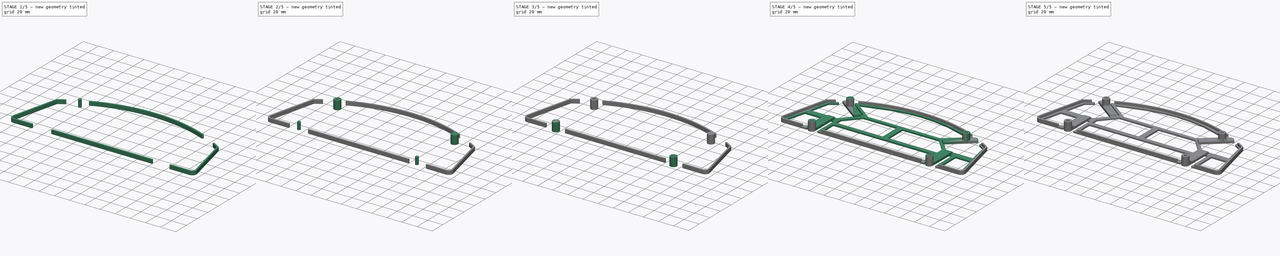
[diagram: build sequence overview — one tinted view per stage of 5, left to right]
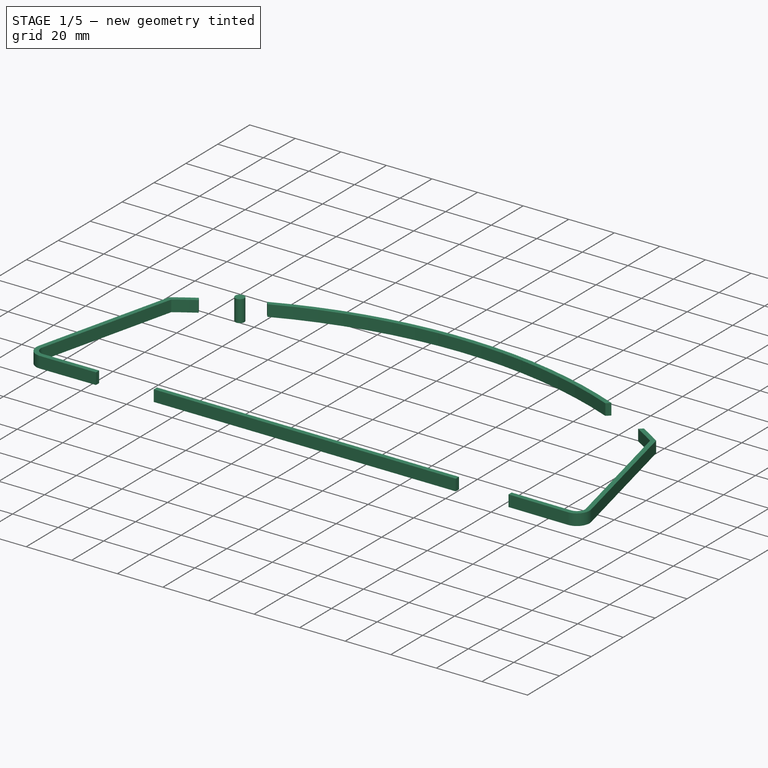
[diagram: stage 1 of 5 — iso view after this stage's code; geometry added in this stage tinted green]
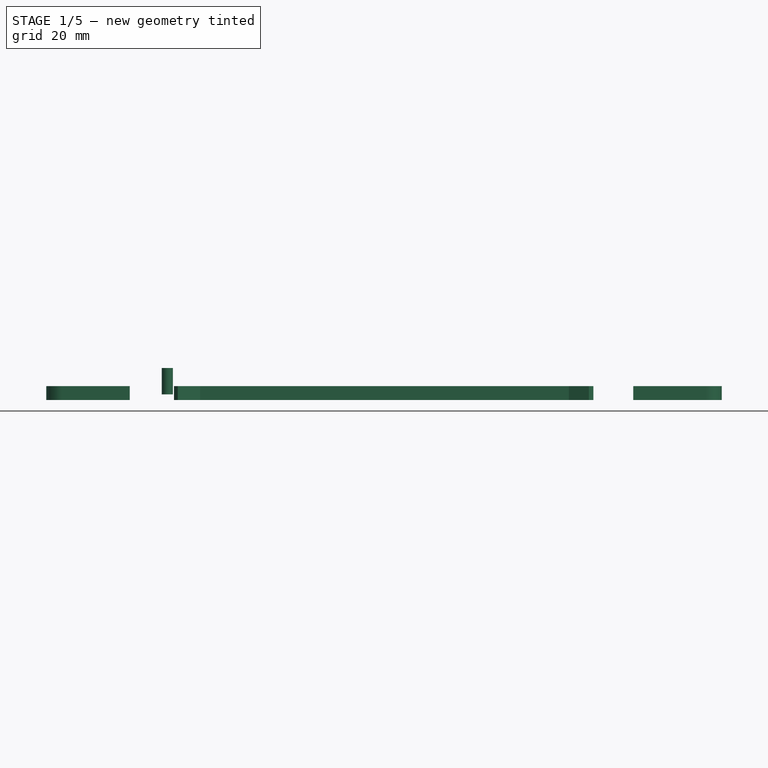
[diagram: stage 1 of 5 — front view after this stage's code; geometry added in this stage tinted green]
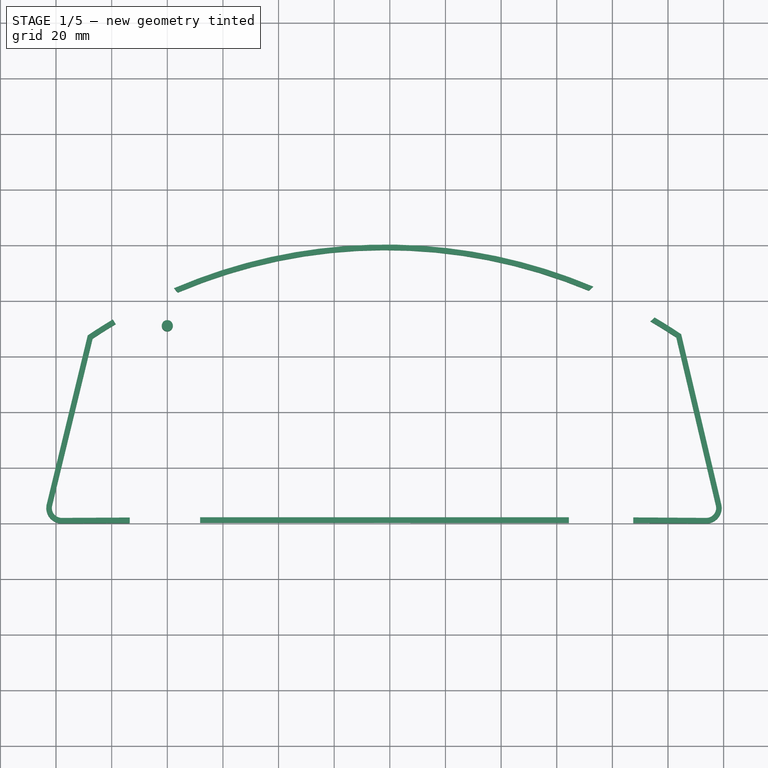
[diagram: stage 1 of 5 — top view after this stage's code; geometry added in this stage tinted green]
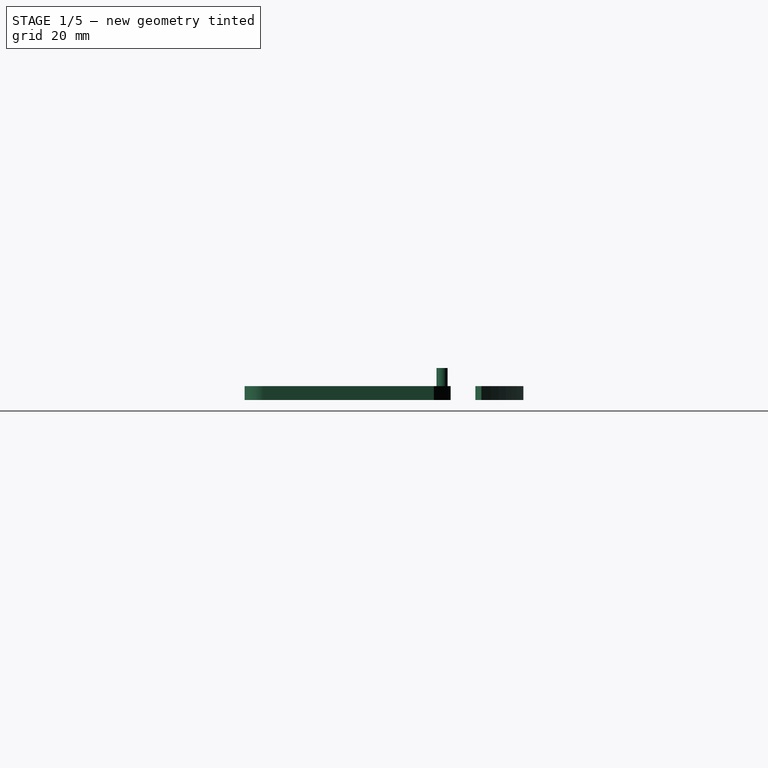
[diagram: stage 1 of 5 — right view after this stage's code; geometry added in this stage tinted green]
FCSTD DOCUMENT  (FreeCAD 0.16R6045 (Git))
Label: project_n_rev6
License: All rights reserved
LicenseURL: http://en.wikipedia.org/wiki/All_rights_reserved
objects: Part::Cylinder×8, Sketcher::SketchObject×5, Part::Cut×5, PartDesign::Fillet×4, PartDesign::Pad×2, Part::Extrusion×2, Part::MultiFuse×2, Part::Thickness×1
note: 31 computed .brp shape members not serialized (recipe doc carries the construction recipe); baked Part::Feature solids carry a one-line shape summary decoded from their .brp

FEATURE [Sketcher::SketchObject] Sketch  label="Base"
  Placement = pos=(0,0,0) rot=(1,0,0;3.14159rad)
  sketch-geometry (61):
    g0: LineSegment StartX=-43.3507 StartY=-6.8712 StartZ=0 EndX=-28.7131 EndY=-67.7959 EndZ=0
    g1: LineSegment StartX=199.163 StartY=-6.8694 StartZ=0 EndX=184.743 EndY=-68.0557 EndZ=0
    g2: ArcOfCircle CenterX=-37.936 CenterY=-5.56776 CenterZ=0 NormalX=0 NormalY=0 NormalZ=1 Radius=5.56941 StartAngle=1.57075 EndAngle=3.37782
    g3: ArcOfCircle CenterX=193.736 CenterY=-5.5753 CenterZ=0 NormalX=0 NormalY=0 NormalZ=1 Radius=5.57903 StartAngle=6.0491 EndAngle=7.85398
    g4: ArcOfCircle CenterX=78.2135 CenterY=90.7587 CenterZ=0 NormalX=0 NormalY=0 NormalZ=1 Radius=191.24 StartAngle=4.11906 EndAngle=4.18254
    g5: LineSegment StartX=-6.93925 StartY=-32 StartZ=0 EndX=-6.93925 EndY=0.000261594 EndZ=0
    g6: LineSegment StartX=7 StartY=-32 StartZ=0 EndX=7 EndY=0.000143702 EndZ=0
    g7: LineSegment StartX=-6.93925 StartY=0.000261594 StartZ=0 EndX=-37.9357 EndY=0.00165396 EndZ=0
    g8: LineSegment StartX=149.061 StartY=-32.3968 StartZ=0 EndX=149.061 EndY=0.00359255 EndZ=0
    g9: LineSegment StartX=163.386 StartY=-32.3968 StartZ=0 EndX=163.268 EndY=0.00373137 EndZ=0
    g10: LineSegment StartX=149.061 StartY=0.00359255 StartZ=0 EndX=7 EndY=0.000143702 EndZ=0
    g11: LineSegment StartX=163.268 StartY=0.00373137 StartZ=0 EndX=193.736 EndY=0.00373137 EndZ=0
    g12: LineSegment StartX=25.2575 StartY=-61.8332 StartZ=0 EndX=-0.158145 EndY=-81.3435 EndZ=0
    g13: ArcOfCircle CenterX=78.2139 CenterY=90.914 CenterZ=0 NormalX=0 NormalY=0 NormalZ=1 Radius=191.176 StartAngle=4.28771 EndAngle=5.13451
    g14: LineSegment StartX=131.274 StartY=-60.4558 StartZ=0 EndX=155.814 EndY=-81.0775 EndZ=0
    g15: ArcOfCircle CenterX=78.2607 CenterY=90.6757 CenterZ=0 NormalX=0 NormalY=0 NormalZ=1 Radius=191.139 StartAngle=5.23447 EndAngle=5.30327
    g16: LineSegment StartX=5 StartY=-81.3932 StartZ=0 EndX=40.6717 EndY=-92 EndZ=0
    g17: LineSegment StartX=40.6717 StartY=-92 StartZ=0 EndX=62.6408 EndY=-95.7307 EndZ=0
    g18: LineSegment StartX=115.422 StartY=-92.1981 StartZ=0 EndX=150.549 EndY=-81.3932 EndZ=0
    g19: LineSegment StartX=150.549 StartY=-81.3932 StartZ=0 EndX=126.643 EndY=-62 EndZ=0
    g20: LineSegment StartX=126.643 StartY=-62 StartZ=0 EndX=31 EndY=-62 EndZ=0
    g21: LineSegment StartX=31 StartY=-62 StartZ=0 EndX=5 EndY=-81.3932 EndZ=0
    g22: LineSegment StartX=-10.4578 StartY=-5 StartZ=0 EndX=-10.4578 EndY=-32.2508 EndZ=0
    g23: LineSegment StartX=-10.4578 StartY=-32.2508 StartZ=0 EndX=-31.6913 EndY=-32.2508 EndZ=0
    g24: LineSegment StartX=-31.6913 StartY=-32.2508 StartZ=0 EndX=-39.0271 EndY=-5 EndZ=0
    g25: LineSegment StartX=-39.0271 StartY=-5 StartZ=0 EndX=-10.4578 EndY=-5 EndZ=0
    g26: LineSegment StartX=11.261 StartY=-6.50449 StartZ=0 EndX=11.261 EndY=-24.5558 EndZ=0
    g27: LineSegment StartX=11.261 StartY=-24.5558 StartZ=0 EndX=144.695 EndY=-24.5558 EndZ=0
    g28: LineSegment StartX=144.695 StartY=-24.5558 StartZ=0 EndX=144.695 EndY=-6.50449 EndZ=0
    g29: LineSegment StartX=144.695 StartY=-6.50449 StartZ=0 EndX=11.261 EndY=-6.50449 EndZ=0
    g30: LineSegment StartX=167.644 StartY=-32.3805 StartZ=0 EndX=187.787 EndY=-32.3805 EndZ=0
    g31: LineSegment StartX=187.787 StartY=-32.3805 StartZ=0 EndX=193.482 EndY=-6.26056 EndZ=0
    g32: LineSegment StartX=193.482 StartY=-6.26056 StartZ=0 EndX=167.644 EndY=-6.26056 EndZ=0
    g33: LineSegment StartX=167.644 StartY=-6.26056 StartZ=0 EndX=167.644 EndY=-32.3805 EndZ=0
    g34: LineSegment StartX=-30.3573 StartY=-40 StartZ=0 EndX=-23.9998 EndY=-65.8043 EndZ=0
    g35: LineSegment StartX=-23.9998 StartY=-65.8043 StartZ=0 EndX=-16.0016 EndY=-71.0891 EndZ=0
    g36: LineSegment StartX=5.55797 StartY=-40 StartZ=0 EndX=-30.3573 EndY=-40 EndZ=0
    g37: LineSegment StartX=185.342 StartY=-39.9597 StartZ=0 EndX=150 EndY=-39.9597 EndZ=0
    g38: LineSegment StartX=171.374 StartY=-72.2033 StartZ=0 EndX=180.008 EndY=-66.783 EndZ=0
    g39: LineSegment StartX=180.008 StartY=-66.783 StartZ=0 EndX=185.342 EndY=-39.9597 EndZ=0
    g40: LineSegment StartX=73 StartY=-29.4733 StartZ=0 EndX=73 EndY=-57.6014 EndZ=0
    g41: LineSegment StartX=73 StartY=-57.6014 StartZ=0 EndX=28 EndY=-57.6014 EndZ=0
    g42: LineSegment StartX=28 StartY=-57.6014 StartZ=0 EndX=11.2859 EndY=-39 EndZ=0
    g43: LineSegment StartX=11.2859 StartY=-39 StartZ=0 EndX=11.2859 EndY=-29.4733 EndZ=0
    g44: LineSegment StartX=11.2859 StartY=-29.4733 StartZ=0 EndX=73 EndY=-29.4733 EndZ=0
    g45: LineSegment StartX=80.0378 StartY=-29.4766 StartZ=0 EndX=80.0378 EndY=-57.4378 EndZ=0
    g46: LineSegment StartX=80.0378 StartY=-57.4378 StartZ=0 EndX=128.477 EndY=-57.4378 EndZ=0
    g47: LineSegment StartX=128.477 StartY=-57.4378 StartZ=0 EndX=145 EndY=-39.2911 EndZ=0
    g48: LineSegment StartX=145 StartY=-39.2911 StartZ=0 EndX=145 EndY=-29.4766 EndZ=0
    g49: LineSegment StartX=145 StartY=-29.4766 StartZ=0 EndX=80.0378 EndY=-29.4766 EndZ=0
    g50: LineSegment StartX=62.6408 StartY=-95.7307 StartZ=0 EndX=78 EndY=-96.5296 EndZ=0
    g51: LineSegment StartX=78 StartY=-96.5296 StartZ=0 EndX=97 EndY=-95.3313 EndZ=0
    g52: LineSegment StartX=97 StartY=-95.3313 StartZ=0 EndX=115.422 EndY=-92.1981 EndZ=0
    g53: LineSegment StartX=-6.93925 StartY=-32 StartZ=0 EndX=7 EndY=-32 EndZ=0
    g54: LineSegment StartX=149.061 StartY=-32.3968 StartZ=0 EndX=163.386 EndY=-32.3968 EndZ=0
    g55: LineSegment StartX=5.55797 StartY=-40 StartZ=0 EndX=25.2575 EndY=-61.8332 EndZ=0
    g56: LineSegment StartX=131.274 StartY=-60.4558 StartZ=0 EndX=150 EndY=-39.9597 EndZ=0
    g57: ArcOfCircle CenterX=0.789964 CenterY=-82.5476 CenterZ=0 NormalX=0 NormalY=0 NormalZ=1 Radius=1.53254 StartAngle=2.23782 EndAngle=3.63952
    g58: ArcOfCircle CenterX=-17.3651 CenterY=-72.5633 CenterZ=0 NormalX=0 NormalY=0 NormalZ=1 Radius=2.00806 StartAngle=4.14718 EndAngle=7.10756
    g59: ArcOfCircle CenterX=154.996 CenterY=-82.6346 CenterZ=0 NormalX=0 NormalY=0 NormalZ=1 Radius=1.75917 StartAngle=5.78144 EndAngle=7.36998
    g60: ArcOfCircle CenterX=172.566 CenterY=-73.5312 CenterZ=0 NormalX=0 NormalY=0 NormalZ=1 Radius=1.78446 StartAngle=2.30229 EndAngle=5.31637
  constraints (84):
    c: Coincident(g4,g0)
    c: Coincident(g15,g1)
    c: Coincident(g6,g10)
    c: Coincident(g9,g11)
    c: Coincident(g5,g7)
    c: Coincident(g10,g8)
    c: Coincident(g0,g2)
    c: Coincident(g3,g1)
    c: Coincident(g2,g7)
    c: Coincident(g3,g11)
    c: Coincident(g16,g17)
    c: Coincident(g52,g18)
    c: Coincident(g18,g19)
    c: Coincident(g19,g20)
    c: Horizontal(g20)
    c: Coincident(g20,g21)
    c: Coincident(g21,g16)
    c: Vertical(g22)
    c: Coincident(g22,g23)
    c: Horizontal(g23)
    c: Coincident(g23,g24)
    c: Coincident(g25,g24)
    c: Coincident(g25,g22)
    c: Horizontal(g25)
    c: Vertical(g26)
    c: Coincident(g26,g27)
    c: Horizontal(g27)
    c: Coincident(g27,g28)
    c: Vertical(g28)
    c: Coincident(g28,g29)
    c: Coincident(g29,g26)
    c: Horizontal(g29)
    c: Horizontal(g30)
    c: Coincident(g30,g31)
    c: Coincident(g31,g32)
    c: Horizontal(g32)
    c: Coincident(g32,g33)
    c: Coincident(g33,g30)
    c: Vertical(g33)
    c: Coincident(g34,g35)
    c: Coincident(g36,g34)
    c: Horizontal(g36)
    c: Horizontal(g37)
    c: Coincident(g38,g39)
    c: Coincident(g39,g37)
    c: Vertical(g40)
    c: Coincident(g40,g41)
    c: Horizontal(g41)
    c: Coincident(g41,g42)
    c: Coincident(g42,g43)
    c: Vertical(g43)
    c: Coincident(g43,g44)
    c: Coincident(g44,g40)
    c: Horizontal(g44)
    c: Vertical(g45)
    c: Coincident(g45,g46)
    c: Horizontal(g46)
    c: Coincident(g46,g47)
    c: Coincident(g47,g48)
    c: Vertical(g48)
    c: Coincident(g48,g49)
    c: Coincident(g49,g45)
    c: Horizontal(g49)
    c: Coincident(g50,g51)
    c: Coincident(g17,g50)
    c: Coincident(g52,g51)
    c: Coincident(g53,g5)
    c: Coincident(g53,g6)
    c: Horizontal(g53)
    c: Coincident(g54,g8)
    c: Coincident(g54,g9)
    c: Horizontal(g54)
    c: Coincident(g55,g36)
    c: Coincident(g55,g12)
    c: Coincident(g56,g14)
    c: Coincident(g56,g37)
    c: Coincident(g12,g57)
    c: Coincident(g13,g57)
    c: Coincident(g35,g58)
    c: Coincident(g4,g58)
    c: Coincident(g14,g59)
    c: Coincident(g13,g59)
    c: Coincident(g38,g60)
    c: Coincident(g15,g60)
FEATURE [Sketcher::SketchObject] Sketch004  label="Wall"
  sketch-geometry (29):
    g0: ArcOfCircle CenterX=78.2135 CenterY=90.7587 CenterZ=0 NormalX=0 NormalY=0 NormalZ=1 Radius=191.194 StartAngle=4.13378 EndAngle=4.19443
    g1: LineSegment StartX=-6 StartY=0 StartZ=0 EndX=-38 EndY=0 EndZ=0
    g2: LineSegment StartX=150 StartY=0 StartZ=0 EndX=5.75606 EndY=0 EndZ=0
    g3: LineSegment StartX=162 StartY=0 StartZ=0 EndX=193.736 EndY=0 EndZ=0
    g4: ArcOfCircle CenterX=78.3526 CenterY=90.8251 CenterZ=0 NormalX=0 NormalY=0 NormalZ=1 Radius=191.182 StartAngle=4.31861 EndAngle=5.10486
    g5: ArcOfCircle CenterX=78.2135 CenterY=90.7587 CenterZ=0 NormalX=0 NormalY=0 NormalZ=1 Radius=190.959 StartAngle=5.22699 EndAngle=5.28539
    g6: LineSegment StartX=5 StartY=-83 StartZ=0 EndX=39.505 EndY=-94 EndZ=0
    g7: LineSegment StartX=39.505 StartY=-94 StartZ=0 EndX=62.585 EndY=-98 EndZ=0
    g8: LineSegment StartX=115.781 StartY=-94.1981 StartZ=0 EndX=151.474 EndY=-83.5973 EndZ=0
    g9: LineSegment StartX=-38 StartY=-3.39482 StartZ=0 EndX=-6 EndY=-3.39482 EndZ=0
    g10: LineSegment StartX=149.756 StartY=-3.59354 StartZ=0 EndX=5.75606 EndY=-3.59354 EndZ=0
    g11: LineSegment StartX=193.736 StartY=-4.18044 StartZ=0 EndX=162 EndY=-4.18044 EndZ=0
    g12: LineSegment StartX=-24.7851 StartY=-67 StartZ=0 EndX=-14.3428 EndY=-73.6141 EndZ=0
    g13: LineSegment StartX=171 StartY=-74 StartZ=0 EndX=181 EndY=-67.7707 EndZ=0
    g14: LineSegment StartX=62.585 StartY=-98 StartZ=0 EndX=78 EndY=-98.5838 EndZ=0
    g15: LineSegment StartX=78 StartY=-98.5838 StartZ=0 EndX=97.359 EndY=-97.3313 EndZ=0
    g16: LineSegment StartX=97.359 StartY=-97.3313 StartZ=0 EndX=115.781 EndY=-94.1981 EndZ=0
    g17: LineSegment StartX=-6 StartY=0 StartZ=0 EndX=-6 EndY=-3.39482 EndZ=0
    g18: LineSegment StartX=5.75606 StartY=-3.59354 StartZ=0 EndX=5.75606 EndY=0 EndZ=0
    g19: LineSegment StartX=-38 StartY=0 StartZ=0 EndX=-38 EndY=-3.39482 EndZ=0
    g20: LineSegment StartX=150 StartY=0 StartZ=0 EndX=149.756 EndY=-3.59354 EndZ=0
    g21: LineSegment StartX=162 StartY=0 StartZ=0 EndX=162 EndY=-4.18044 EndZ=0
    g22: LineSegment StartX=193.736 StartY=0 StartZ=0 EndX=193.736 EndY=-4.18044 EndZ=0
    g23: LineSegment StartX=5 StartY=-83 StartZ=0 EndX=5 EndY=-85.7248 EndZ=0
    g24: LineSegment StartX=151.474 StartY=-83.5973 StartZ=0 EndX=151.474 EndY=-85.8208 EndZ=0
    g25: LineSegment StartX=171 StartY=-74 StartZ=0 EndX=172.201 EndY=-75.469 EndZ=0
    g26: LineSegment StartX=181 StartY=-67.7707 StartZ=0 EndX=181.744 EndY=-69.6997 EndZ=0
    g27: LineSegment StartX=-14.3428 StartY=-73.6141 StartZ=0 EndX=-16.4482 EndY=-75.3566 EndZ=0
    g28: LineSegment StartX=-24.7851 StartY=-67 StartZ=0 EndX=-26.3433 EndY=-69.3132 EndZ=0
  constraints (39):
    c: Coincident(g6,g7)
    c: Coincident(g16,g8)
    c: Horizontal(g9)
    c: Horizontal(g10)
    c: Horizontal(g11)
    c: Coincident(g14,g15)
    c: Coincident(g7,g14)
    c: Coincident(g16,g15)
    c: Coincident(g17,g1)
    c: Coincident(g17,g9)
    c: Vertical(g17)
    c: Coincident(g18,g10)
    c: Coincident(g18,g2)
    c: Vertical(g18)
    c: Coincident(g19,g1)
    c: Coincident(g19,g9)
    c: Vertical(g19)
    c: Coincident(g20,g2)
    c: Coincident(g20,g10)
    c: Coincident(g21,g3)
    c: Coincident(g21,g11)
    c: Vertical(g21)
    c: Coincident(g22,g3)
    c: Coincident(g22,g11)
    c: Vertical(g22)
    c: Coincident(g23,g6)
    c: Coincident(g23,g4)
    c: Vertical(g23)
    c: Coincident(g24,g8)
    c: Coincident(g24,g4)
    c: Vertical(g24)
    c: Coincident(g25,g13)
    c: Coincident(g25,g5)
    c: Coincident(g26,g13)
    c: Coincident(g26,g5)
    c: Coincident(g27,g12)
    c: Coincident(g27,g0)
    c: Coincident(g28,g12)
    c: Coincident(g28,g0)
FEATURE [Sketcher::SketchObject] Sketch006
  Placement = pos=(0,0,0) rot=(1,0,0;3.14159rad)
  sketch-geometry (10):
    g0: LineSegment StartX=-43.3507 StartY=-6.8712 StartZ=0 EndX=-28.6056 EndY=-67.6363 EndZ=0
    g1: LineSegment StartX=199.163 StartY=-6.8694 StartZ=0 EndX=184.746 EndY=-68.0609 EndZ=0
    g2: ArcOfCircle CenterX=-37.936 CenterY=-5.56776 CenterZ=0 NormalX=0 NormalY=0 NormalZ=1 Radius=5.56941 StartAngle=1.57075 EndAngle=3.37782
    g3: ArcOfCircle CenterX=193.736 CenterY=-5.5753 CenterZ=0 NormalX=0 NormalY=0 NormalZ=1 Radius=5.57903 StartAngle=6.0491 EndAngle=7.85398
    g4: ArcOfCircle CenterX=78.6813 CenterY=91.7773 CenterZ=0 NormalX=0 NormalY=0 NormalZ=1 Radius=192.154 StartAngle=4.12001 EndAngle=4.26651
    g5: LineSegment StartX=6 StartY=-0.234337 StartZ=0 EndX=-37.9357 EndY=0.00165396 EndZ=0
    g6: LineSegment StartX=161.599 StartY=-0.204933 StartZ=0 EndX=6 EndY=-0.234337 EndZ=0
    g7: LineSegment StartX=161.599 StartY=-0.204933 StartZ=0 EndX=193.736 EndY=0.00373137 EndZ=0
    g8: ArcOfCircle CenterX=78.463 CenterY=91.7918 CenterZ=0 NormalX=0 NormalY=0 NormalZ=1 Radius=192.073 StartAngle=4.26756 EndAngle=5.14419
    g9: ArcOfCircle CenterX=78.2123 CenterY=90.7613 CenterZ=0 NormalX=0 NormalY=0 NormalZ=1 Radius=191.243 StartAngle=5.14763 EndAngle=5.30323
  constraints (10):
    c: Coincident(g4,g0)
    c: Coincident(g9,g1)
    c: Coincident(g0,g2)
    c: Coincident(g3,g1)
    c: Coincident(g2,g5)
    c: Coincident(g3,g7)
    c: Coincident(g5,g6)
    c: Coincident(g6,g7)
    c: Coincident(g8,g9)
    c: Coincident(g4,g8)
FEATURE [PartDesign::Pad] Pad
  Length = 5
  Length2 = 100
  Placement = pos=(0,0,0) rot=(1,0,0;3.14159rad)
  Reversed = true
  Sketch = -> Sketch006
  Type = 0
FEATURE [Part::Thickness] Thickness
  Faces = -> Pad [Face11,Face12]
  Intersection = false
  Join = 0
  Mode = 1
  SelfIntersection = false
  Value = -2
FEATURE [Sketcher::SketchObject] Sketch011
  Placement = pos=(0,0,0) rot=(1,0,0;3.14159rad)
  sketch-geometry (17):
    g0: LineSegment StartX=-11.2675 StartY=-79.1084 StartZ=0 EndX=-20 EndY=-74 EndZ=0
    g1: LineSegment StartX=-20 StartY=-74 StartZ=0 EndX=-17 EndY=-69.248 EndZ=0
    g2: LineSegment StartX=-17 StartY=-69.248 StartZ=0 EndX=4.79166 EndY=-81.7529 EndZ=0
    g3: LineSegment StartX=4.79166 StartY=-81.7529 StartZ=0 EndX=1.36237 EndY=-85.8123 EndZ=0
    g4: LineSegment StartX=1.36237 StartY=-85.8123 StartZ=0 EndX=-11.2675 EndY=-79.1084 EndZ=0
    g5: LineSegment StartX=175.433 StartY=-74.2412 StartZ=0 EndX=173.179 EndY=-72.2412 EndZ=0
    g6: LineSegment StartX=173.179 StartY=-72.2412 StartZ=0 EndX=150.562 EndY=-82.789 EndZ=0
    g7: LineSegment StartX=150.562 StartY=-82.789 StartZ=0 EndX=154.562 EndY=-86.3764 EndZ=0
    g8: LineSegment StartX=154.562 StartY=-86.3764 StartZ=0 EndX=175.433 EndY=-74.2412 EndZ=0
    g9: LineSegment StartX=144.347 StartY=0.629851 StartZ=0 EndX=144.347 EndY=-3.28855 EndZ=0
    g10: LineSegment StartX=144.347 StartY=-3.28855 StartZ=0 EndX=167.502 EndY=-3.28855 EndZ=0
    g11: LineSegment StartX=167.502 StartY=-3.28855 StartZ=0 EndX=167.502 EndY=2.53606 EndZ=0
    g12: LineSegment StartX=167.502 StartY=2.53606 StartZ=0 EndX=144.347 EndY=0.629851 EndZ=0
    g13: LineSegment StartX=-13.5101 StartY=1.22898 StartZ=0 EndX=-13.5101 EndY=-5 EndZ=0
    g14: LineSegment StartX=-13.5101 StartY=-5 StartZ=0 EndX=11.7831 EndY=-5 EndZ=0
    g15: LineSegment StartX=11.7831 StartY=-5 StartZ=0 EndX=11.7831 EndY=2.63585 EndZ=0
    g16: LineSegment StartX=11.7831 StartY=2.63585 StartZ=0 EndX=-13.5101 EndY=1.22898 EndZ=0
  constraints (23):
    c: Coincident(g0,g1)
    c: Coincident(g1,g2)
    c: Coincident(g2,g3)
    c: Coincident(g3,g4)
    c: Coincident(g4,g0)
    c: Coincident(g5,g6)
    c: Coincident(g6,g7)
    c: Coincident(g7,g8)
    c: Coincident(g8,g5)
    c: Vertical(g9)
    c: Coincident(g9,g10)
    c: Horizontal(g10)
    c: Coincident(g10,g11)
    c: Vertical(g11)
    c: Coincident(g11,g12)
    c: Coincident(g12,g9)
    c: Vertical(g13)
    c: Coincident(g13,g14)
    c: Horizontal(g14)
    c: Coincident(g14,g15)
    c: Vertical(g15)
    c: Coincident(g15,g16)
    c: Coincident(g16,g13)
FEATURE [PartDesign::Pad] Pad001
  Length = 10
  Length2 = 100
  Placement = pos=(0,0,0) rot=(1,0,0;3.14159rad)
  Reversed = true
  Sketch = -> Sketch011
  Type = 0
FEATURE [Part::Cylinder] Cylinder007
  Angle = 360
  Height = 9.5
  Placement = pos=(0,71,2) rot=(0,0,1;0rad)
  Radius = 2
FEATURE [Part::Cut] Cut
  Base = -> Thickness
  Tool = -> Pad001
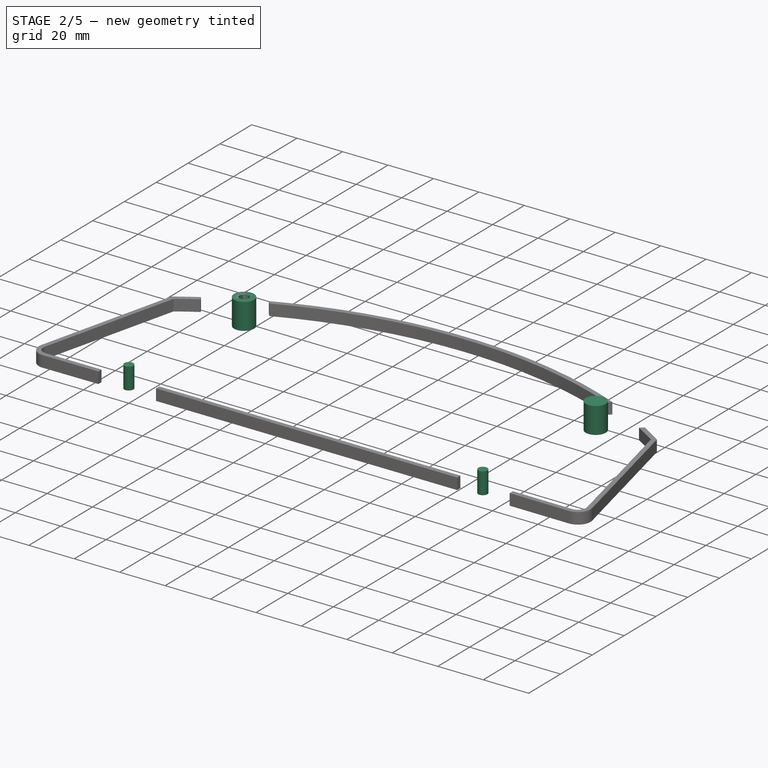
[diagram: stage 2 of 5 — iso view after this stage's code; geometry added in this stage tinted green]
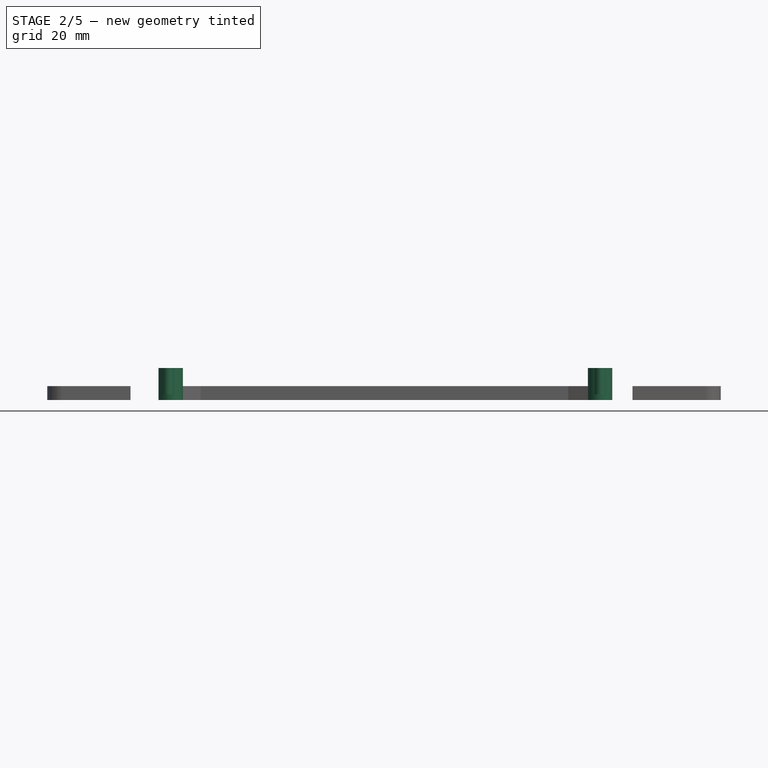
[diagram: stage 2 of 5 — front view after this stage's code; geometry added in this stage tinted green]
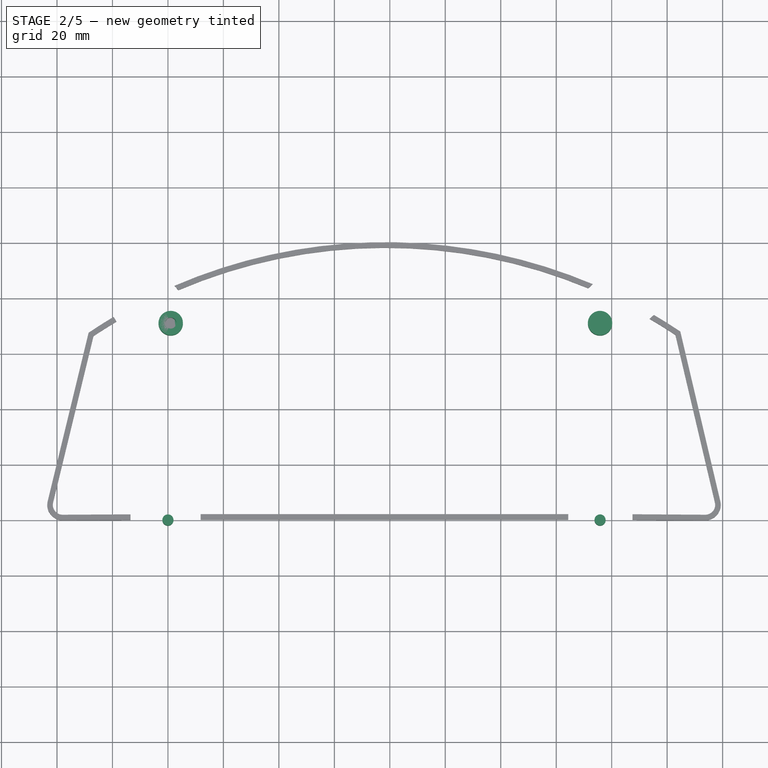
[diagram: stage 2 of 5 — top view after this stage's code; geometry added in this stage tinted green]
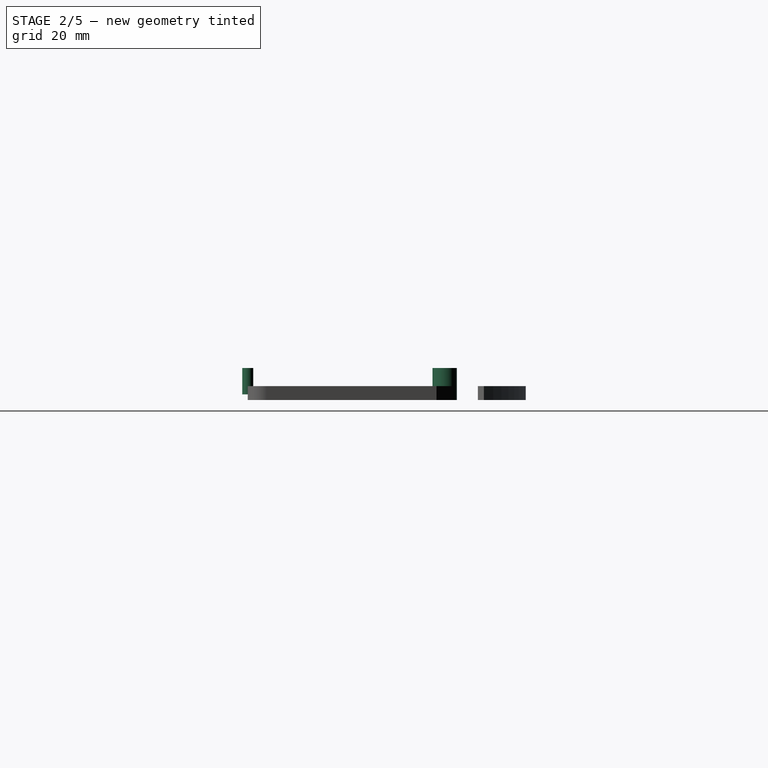
[diagram: stage 2 of 5 — right view after this stage's code; geometry added in this stage tinted green]
FEATURE [Part::Cylinder] Cylinder002
  Angle = 360
  Height = 11.5
  Placement = pos=(155.8,71,0) rot=(0,0,1;0rad)
  Radius = 4.4
FEATURE [Part::Cylinder] Cylinder003
  Angle = 360
  Height = 11.5
  Placement = pos=(0,71,0) rot=(0,0,1;0rad)
  Radius = 4.4
FEATURE [Part::Cylinder] Cylinder004
  Angle = 360
  Height = 9.5
  Placement = pos=(0,0,2) rot=(0,0,1;0rad)
  Radius = 2
FEATURE [Part::Cylinder] Cylinder005
  Angle = 360
  Height = 9.5
  Placement = pos=(155.8,0,2) rot=(0,0,1;0rad)
  Radius = 2
FEATURE [Part::Cut] Cut004
  Base = -> Cylinder003
  Placement = pos=(1,0,0) rot=(0,0,1;0rad)
  Tool = -> Cylinder007
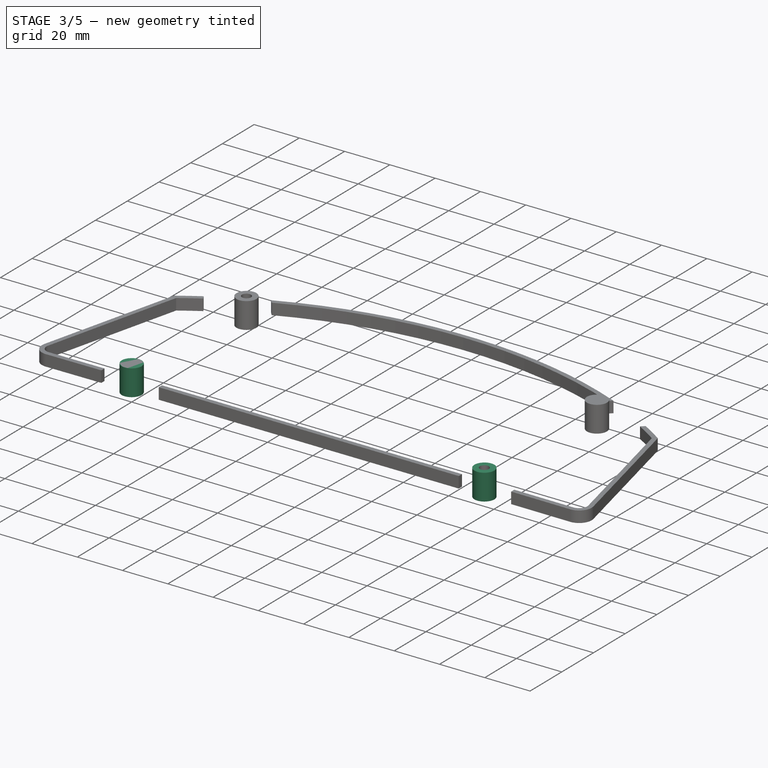
[diagram: stage 3 of 5 — iso view after this stage's code; geometry added in this stage tinted green]
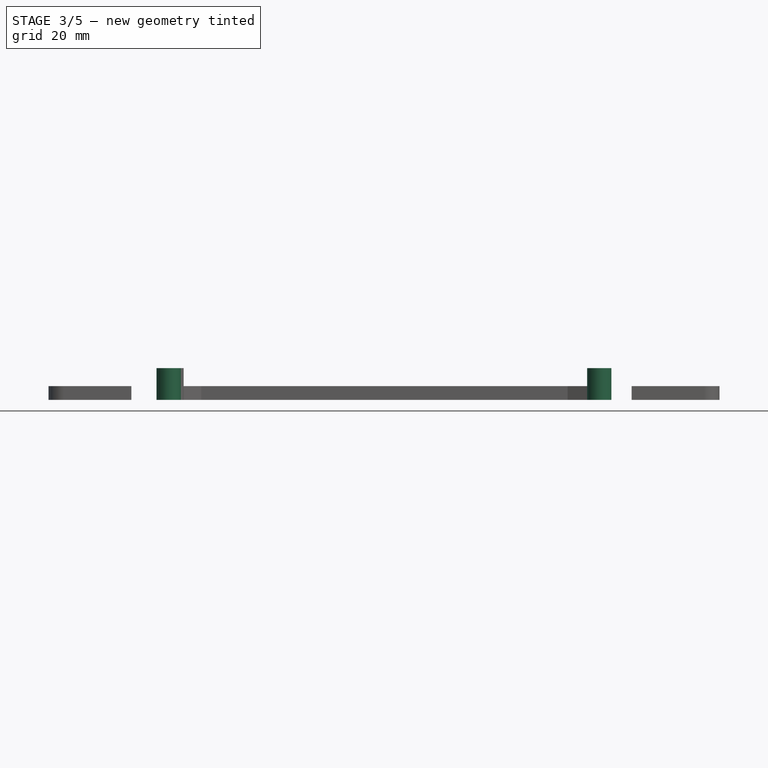
[diagram: stage 3 of 5 — front view after this stage's code; geometry added in this stage tinted green]
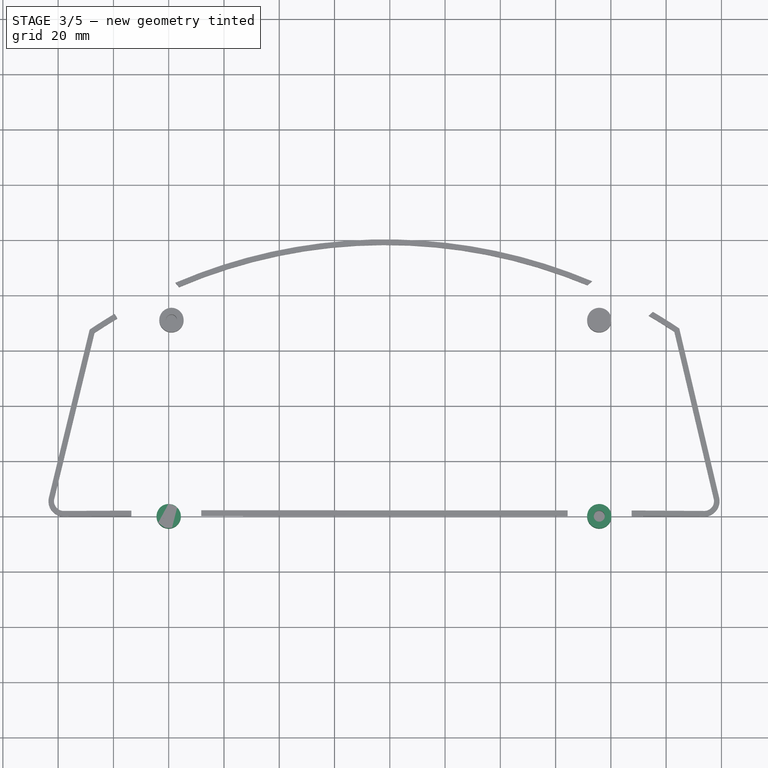
[diagram: stage 3 of 5 — top view after this stage's code; geometry added in this stage tinted green]
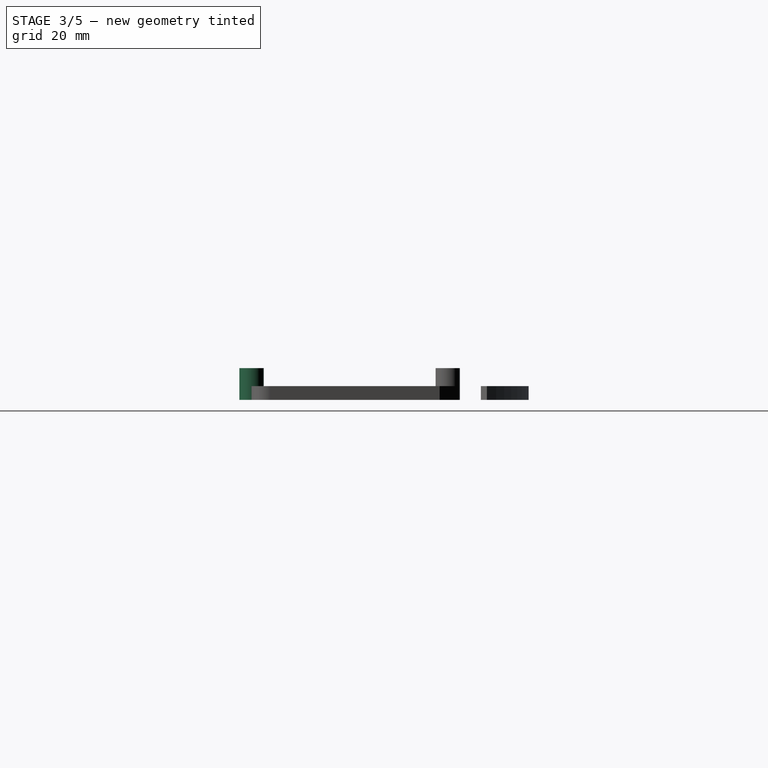
[diagram: stage 3 of 5 — right view after this stage's code; geometry added in this stage tinted green]
FEATURE [Part::Cylinder] Cylinder006
  Angle = 360
  Height = 9.5
  Placement = pos=(155.8,71,2) rot=(0,0,1;0rad)
  Radius = 2
FEATURE [Part::Cylinder] Cylinder
  Angle = 360
  Height = 11.5
  Radius = 4.4
FEATURE [Part::Cylinder] Cylinder001
  Angle = 360
  Height = 11.5
  Placement = pos=(155.8,0,0) rot=(0,0,1;0rad)
  Radius = 4.4
FEATURE [Part::Cut] Cut003
  Base = -> Cylinder001
  Tool = -> Cylinder005
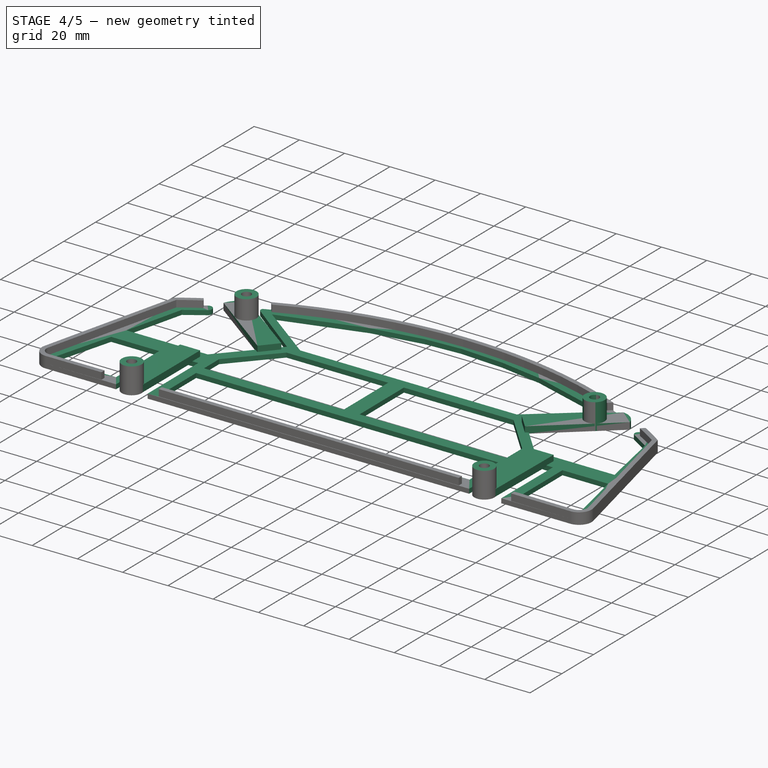
[diagram: stage 4 of 5 — iso view after this stage's code; geometry added in this stage tinted green]
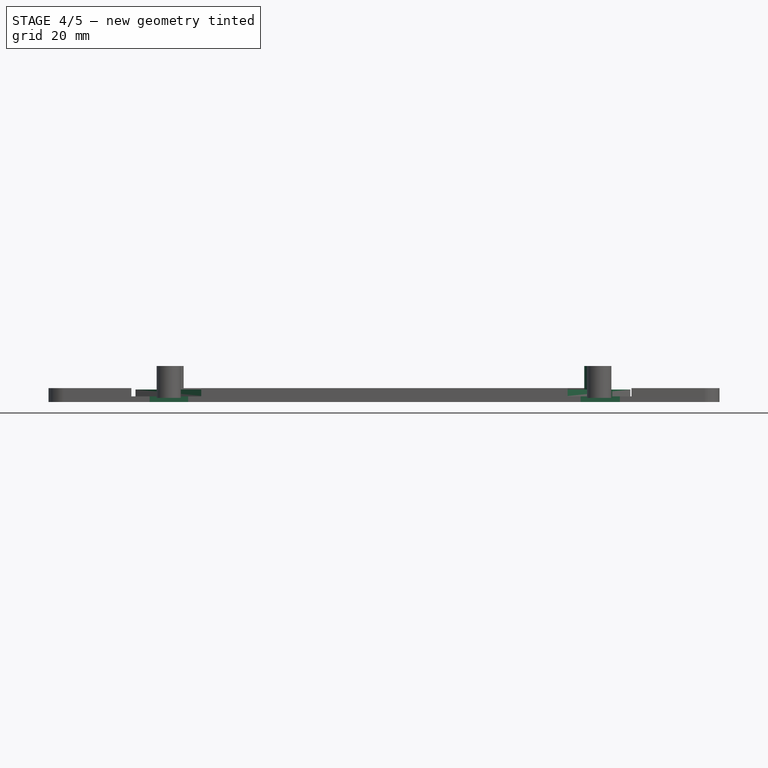
[diagram: stage 4 of 5 — front view after this stage's code; geometry added in this stage tinted green]
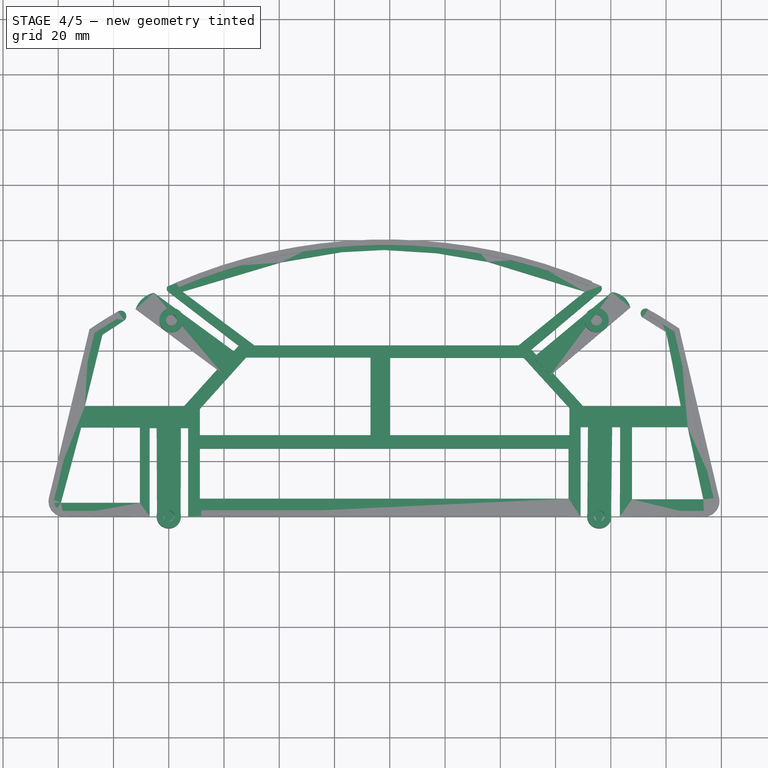
[diagram: stage 4 of 5 — top view after this stage's code; geometry added in this stage tinted green]
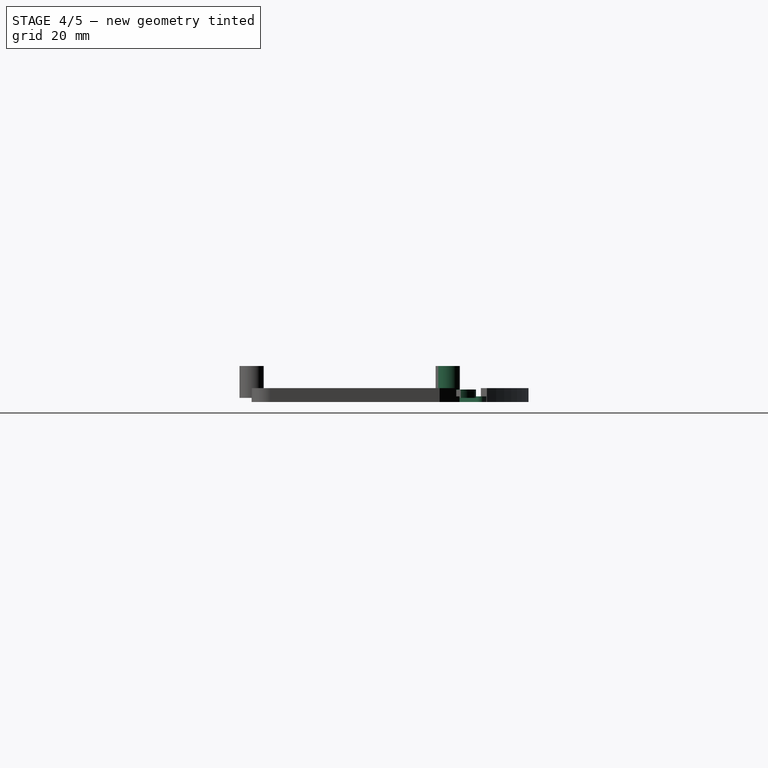
[diagram: stage 4 of 5 — right view after this stage's code; geometry added in this stage tinted green]
FEATURE [Part::Extrusion] Extrude
  Base = -> Sketch
  Dir = (0,0,2)
  Solid = true
FEATURE [Sketcher::SketchObject] Sketch007  label="Springy thing"
  Placement = pos=(0,0,1.5) rot=(1,0,0;3.14159rad)
  sketch-geometry (16):
    g0: LineSegment StartX=-4.25209 StartY=0 StartZ=0 EndX=-4.40208 EndY=-36.8708 EndZ=0
    g1: LineSegment StartX=4.28661 StartY=0 StartZ=0 EndX=4.40547 EndY=-36.8708 EndZ=0
    g2: LineSegment StartX=151.485 StartY=0 StartZ=0 EndX=151.761 EndY=-36.9528 EndZ=0
    g3: LineSegment StartX=160.108 StartY=0.006984 StartZ=0 EndX=160.535 EndY=-36.9528 EndZ=0
    g4: LineSegment StartX=-12.0203 StartY=-75.1003 StartZ=0 EndX=19.1304 EndY=-52.0043 EndZ=0
    g5: LineSegment StartX=-5.37674 StartY=-81 StartZ=0 EndX=24.952 EndY=-58.8018 EndZ=0
    g6: LineSegment StartX=167.088 StartY=-75.6817 StartZ=0 EndX=137.998 EndY=-51.0027 EndZ=0
    g7: LineSegment StartX=160.359 StartY=-81.2307 StartZ=0 EndX=132 EndY=-57.6133 EndZ=0
    g8: LineSegment StartX=151.485 StartY=0 StartZ=0 EndX=160.108 EndY=0.006984 EndZ=0
    g9: LineSegment StartX=-4.25209 StartY=0 StartZ=0 EndX=4.28661 EndY=0 EndZ=0
    g10: LineSegment StartX=-4.40208 StartY=-36.8708 StartZ=0 EndX=4.40547 EndY=-36.8708 EndZ=0
    g11: LineSegment StartX=19.1304 StartY=-52.0043 StartZ=0 EndX=24.952 EndY=-58.8018 EndZ=0
    g12: LineSegment StartX=137.998 StartY=-51.0027 StartZ=0 EndX=132 EndY=-57.6133 EndZ=0
    g13: LineSegment StartX=151.761 StartY=-36.9528 StartZ=0 EndX=160.535 EndY=-36.9528 EndZ=0
    g14: ArcOfCircle CenterX=-3.24224 CenterY=-71.9059 CenterZ=0 NormalX=0 NormalY=0 NormalZ=1 Radius=9.34126 StartAngle=3.4906 EndAngle=4.48185
    g15: ArcOfCircle CenterX=159.732 CenterY=-73.6162 CenterZ=0 NormalX=0 NormalY=0 NormalZ=1 Radius=7.64026 StartAngle=4.79454 EndAngle=6.00943
  constraints (19):
    c: Coincident(g8,g2)
    c: Coincident(g8,g3)
    c: Coincident(g9,g0)
    c: Coincident(g9,g1)
    c: Horizontal(g9)
    c: Coincident(g10,g0)
    c: Coincident(g10,g1)
    c: Horizontal(g10)
    c: Coincident(g11,g4)
    c: Coincident(g11,g5)
    c: Coincident(g12,g6)
    c: Coincident(g12,g7)
    c: Coincident(g13,g2)
    c: Coincident(g13,g3)
    c: Horizontal(g13)
    c: Coincident(g14,g5)
    c: Coincident(g4,g14)
    c: Coincident(g15,g7)
    c: Coincident(g6,g15)
FEATURE [Part::Extrusion] Extrude001
  Base = -> Sketch007
  Dir = (0,0,3)
  Solid = true
FEATURE [Part::Cut] Cut002
  Base = -> Cylinder002
  Placement = pos=(-1,0,0) rot=(0,0,1;0rad)
  Tool = -> Cylinder006
FEATURE [Part::Cut] Cut001
  Base = -> Cylinder
  Tool = -> Cylinder004
FEATURE [Part::MultiFuse] Fusion003  label="Legs"
  Placement = pos=(0,0,1.5) rot=(0,0,1;0rad)
  Shapes = -> [Cut001,Cut004,Cut003,Cut002]
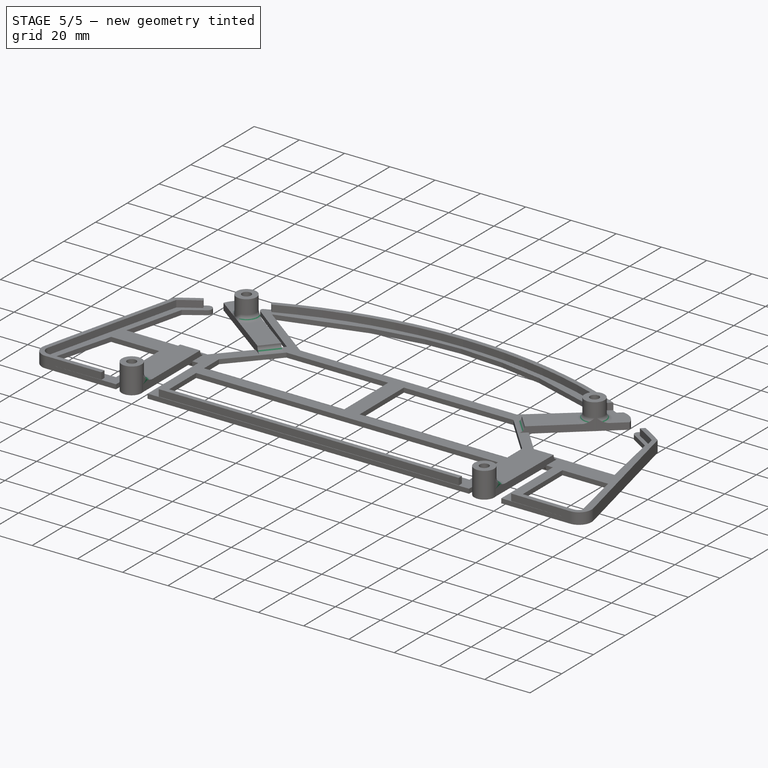
[diagram: stage 5 of 5 — iso view after this stage's code; geometry added in this stage tinted green]
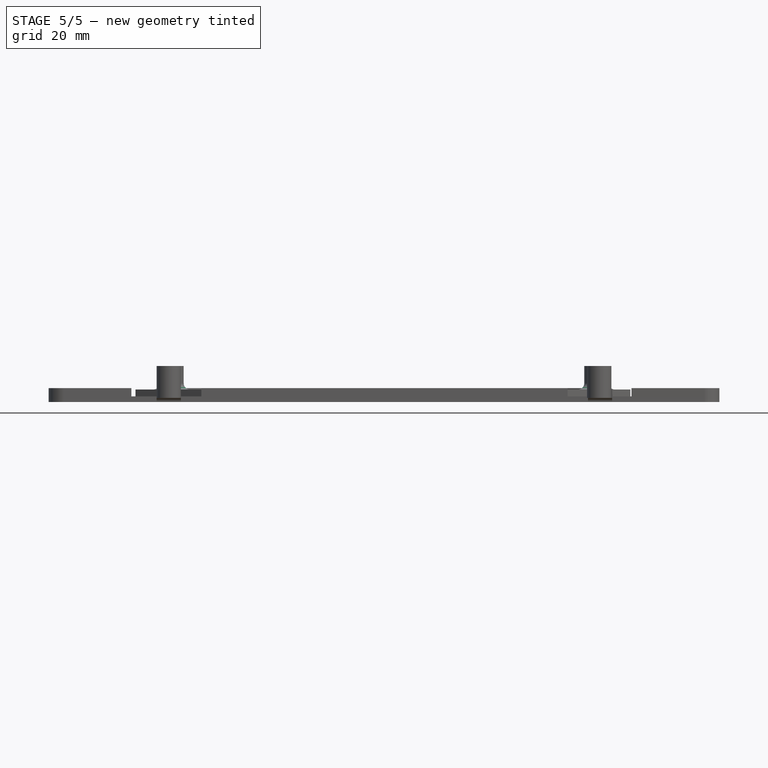
[diagram: stage 5 of 5 — front view after this stage's code; geometry added in this stage tinted green]
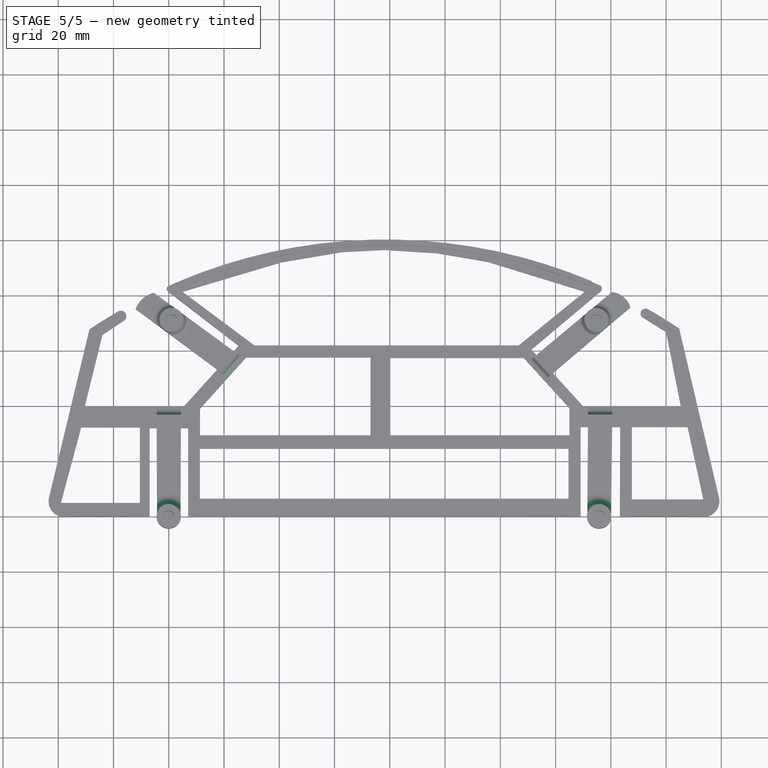
[diagram: stage 5 of 5 — top view after this stage's code; geometry added in this stage tinted green]
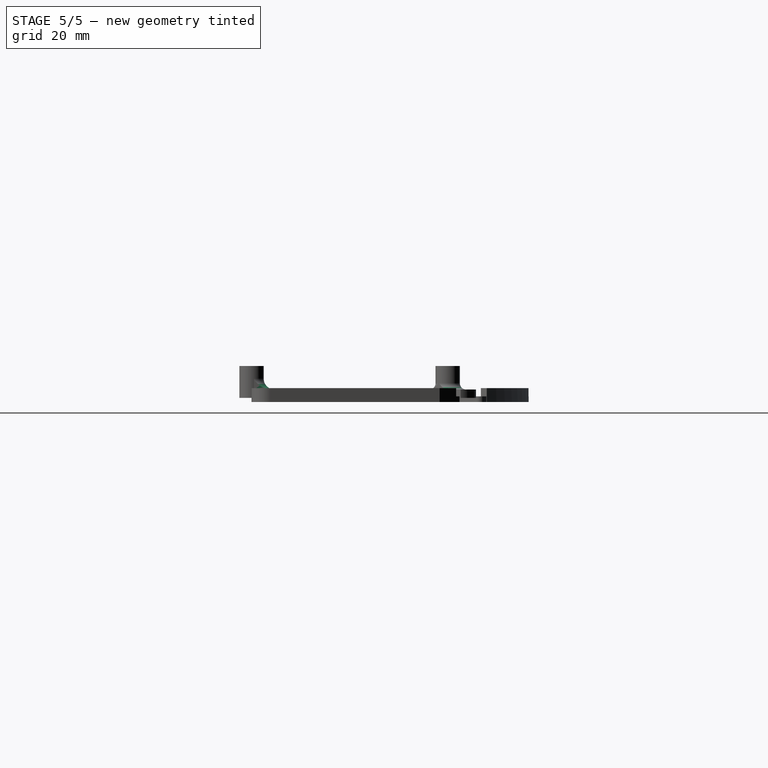
[diagram: stage 5 of 5 — right view after this stage's code; geometry added in this stage tinted green]
FEATURE [Part::MultiFuse] Fusion
  Shapes = -> [Fusion003,Extrude,Extrude001,Cut]
FEATURE [PartDesign::Fillet] Fillet
  Base = -> Fusion [Edge56,Edge97,Edge91,Edge71]
  Radius = 2.4
FEATURE [PartDesign::Fillet] Fillet001
  Base = -> Fillet [Edge193,Edge143,Edge261,Edge128]
  Radius = 1.4
FEATURE [PartDesign::Fillet] Fillet002
  Base = -> Fillet001 [Edge410,Edge430,Edge427]
  Radius = 2.3
FEATURE [PartDesign::Fillet] Fillet003
  Base = -> Fillet002 [Edge462,Edge442]
  Radius = 4
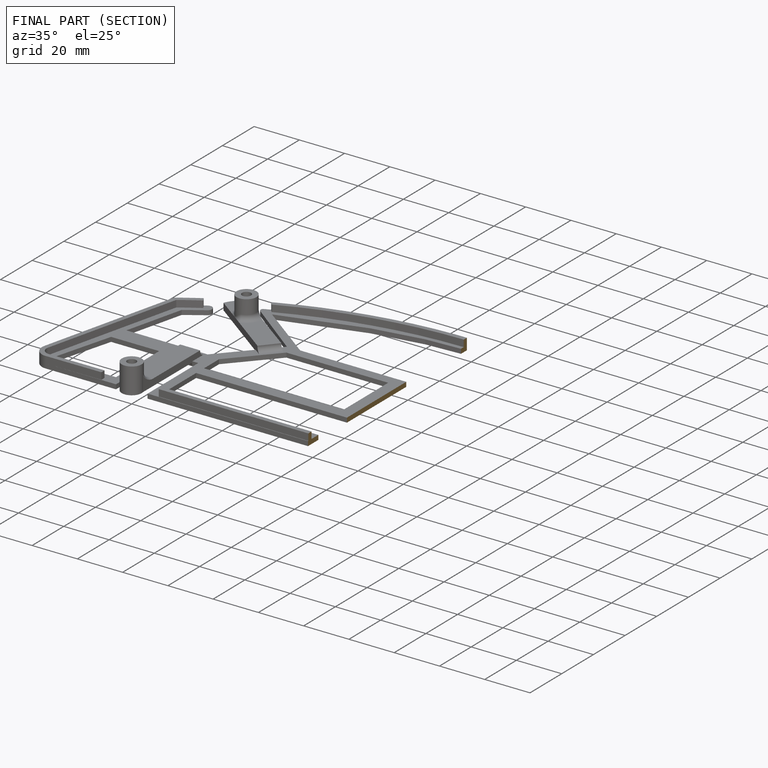
[diagram: finished part — half-section view (interior)]
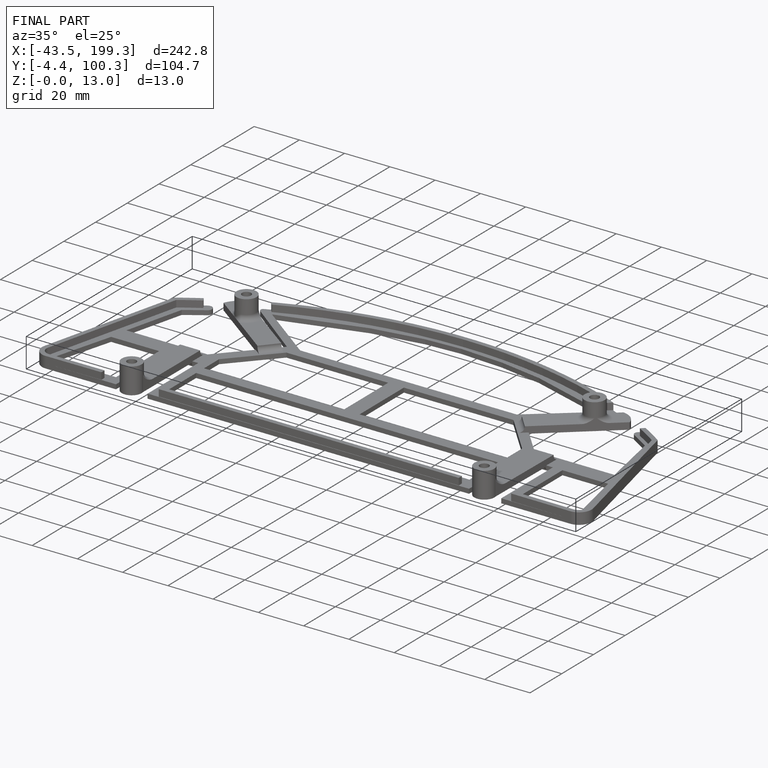
[diagram: finished part — iso view with bounding-box wireframe]
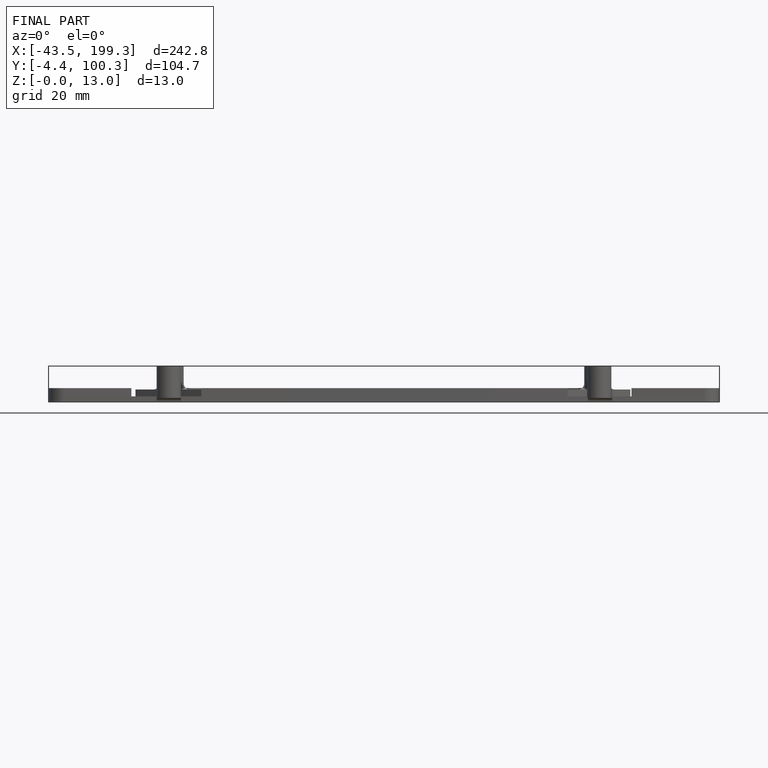
[diagram: finished part — front view with bounding-box wireframe]
